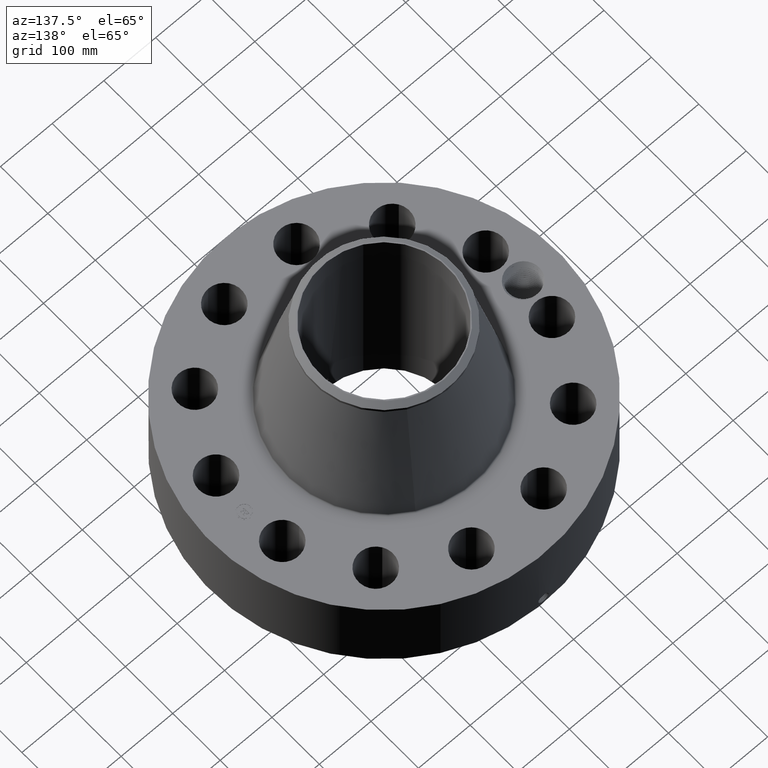
[diagram: clean part render]
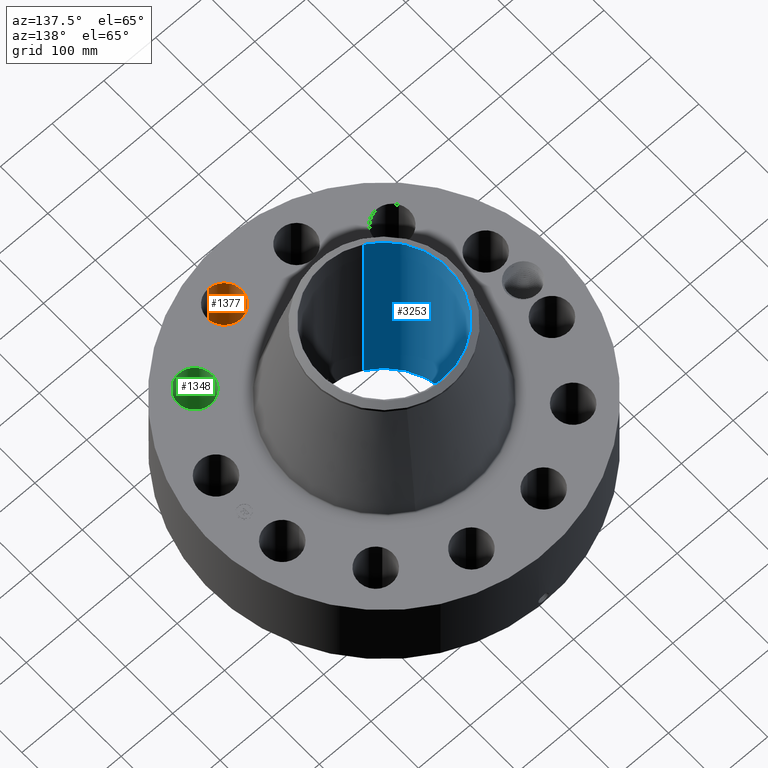
[diagram: same view with three faces highlighted in distinct colors, each labeled with its STEP entity id]
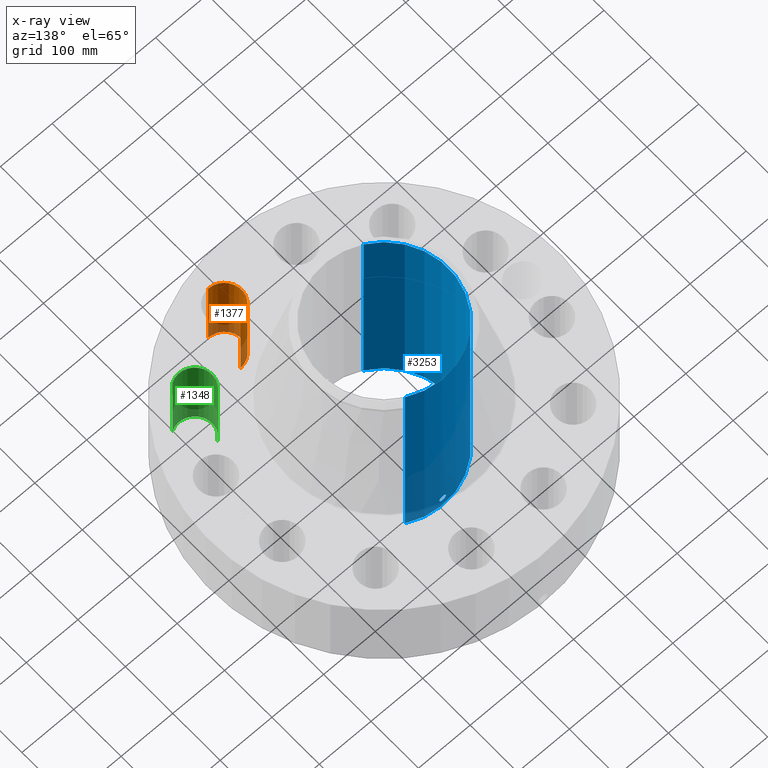
[diagram: x-ray of the same camera — body ghosted, the three highlighted faces saturated]
A machine part, auxiliary view with three faces highlighted in distinct colors.
The next image is the same camera in x-ray (body ghosted, the three faces saturated) — at least one of them is partly hidden behind the body in this view.
Their STEP definitions:

[orange] entity #1377 — the highlighted cylindrical surface (edge-blend (fillet) strip) has radius 33.274 mm, axis along (0, -0, -1).
#302=AXIS2_PLACEMENT_3D('Circle Axis2P3D',#300,#301,$) ;
#697=AXIS2_PLACEMENT_3D('Circle Axis2P3D',#695,#696,$) ;
#1352=AXIS2_PLACEMENT_3D('Cylinder Axis2P3D',#1349,#1350,#1351) ;
#295=CARTESIAN_POINT('Vertex',(2.71904082749,-8.95332665838,0.250000000001)) ;
#297=CARTESIAN_POINT('Vertex',(2.78086388096,-11.5725971503,0.250000000001)) ;
#300=CARTESIAN_POINT('Axis2P3D Location',(2.74995235423,-10.2629619044,0.250000000001)) ;
#695=CARTESIAN_POINT('Axis2P3D Location',(2.74995235423,-10.2629619044,6.75000000003)) ;
#699=CARTESIAN_POINT('Vertex',(2.78086388096,-11.5725971503,6.75000000003)) ;
#701=CARTESIAN_POINT('Vertex',(2.71904082749,-8.95332665838,6.75000000003)) ;
#1349=CARTESIAN_POINT('Axis2P3D Location',(2.74995235423,-10.2629619044,6.74606299215)) ;
#1354=CARTESIAN_POINT('Line Origine',(2.71904082749,-8.95332665838,3.50000000001)) ;
#1359=CARTESIAN_POINT('Line Origine',(2.78086388096,-11.5725971503,3.50000000001)) ;
#301=DIRECTION('Axis2P3D Direction',(0.,0.,-0.0393700787402)) ;
#696=DIRECTION('Axis2P3D Direction',(0.,0.,-0.0393700787402)) ;
#1350=DIRECTION('Axis2P3D Direction',(0.,-0.,-0.0393700787402)) ;
#1351=DIRECTION('Axis2P3D XDirection',(0.000928999420902,-0.039359116607,0.)) ;
#1355=DIRECTION('Vector Direction',(0.,0.,-0.0393700787402)) ;
#1360=DIRECTION('Vector Direction',(0.,0.,-0.0393700787402)) ;
#1356=VECTOR('Line Direction',#1355,0.0393700787402) ;
#1361=VECTOR('Line Direction',#1360,0.0393700787402) ;
#1372=ORIENTED_EDGE('',*,*,#1363,.F.) ;
#1373=ORIENTED_EDGE('',*,*,#304,.T.) ;
#1374=ORIENTED_EDGE('',*,*,#1358,.T.) ;
#1375=ORIENTED_EDGE('',*,*,#703,.F.) ;
#1377=ADVANCED_FACE('PartBody',(#1376),#1353,.F.) ;
#303=CIRCLE('generated circle',#302,1.31000000001) ;
#698=CIRCLE('generated circle',#697,1.31000000001) ;
#1353=CYLINDRICAL_SURFACE('generated cylinder',#1352,1.31000000001) ;
#304=EDGE_CURVE('',#298,#296,#303,.T.) ;
#703=EDGE_CURVE('',#700,#702,#698,.T.) ;
#1358=EDGE_CURVE('',#296,#702,#1357,.F.) ;
#1363=EDGE_CURVE('',#298,#700,#1362,.F.) ;
#1371=EDGE_LOOP('',(#1372,#1373,#1374,#1375)) ;
#1376=FACE_OUTER_BOUND('',#1371,.T.) ;
#1357=LINE('Line',#1354,#1356) ;
#1362=LINE('Line',#1359,#1361) ;
#296=VERTEX_POINT('',#295) ;
#298=VERTEX_POINT('',#297) ;
#700=VERTEX_POINT('',#699) ;
#702=VERTEX_POINT('',#701) ;

[blue] entity #3253 — the highlighted cylindrical surface (partial cylindrical patch) has radius 123.825 mm, axis along (0, 0, -1).
#2366=AXIS2_PLACEMENT_3D('Circle Axis2P3D',#2364,#2365,$) ;
#3130=AXIS2_PLACEMENT_3D('Cylinder Axis2P3D',#3127,#3128,#3129) ;
#3202=AXIS2_PLACEMENT_3D('Circle Axis2P3D',#3200,#3201,$) ;
#2359=CARTESIAN_POINT('Vertex',(2.3371995007,4.27821498923,-1.56655091349E-014)) ;
#2361=CARTESIAN_POINT('Vertex',(-2.3371995007,-4.27821498923,-1.56655091349E-014)) ;
#2364=CARTESIAN_POINT('Axis2P3D Location',(0.,0.,0.)) ;
#3127=CARTESIAN_POINT('Axis2P3D Location',(0.,0.,8.37500000003)) ;
#3136=CARTESIAN_POINT('Vertex',(2.3371995007,4.27821498923,16.7500000001)) ;
#3138=CARTESIAN_POINT('Vertex',(-2.3371995007,-4.27821498923,16.7500000001)) ;
#3141=CARTESIAN_POINT('Line Origine',(2.3371995007,4.27821498923,8.37500000003)) ;
#3146=CARTESIAN_POINT('Line Origine',(-2.3371995007,-4.27821498923,8.37500000003)) ;
#3200=CARTESIAN_POINT('Axis2P3D Location',(0.,0.,16.7500000001)) ;
#3212=CARTESIAN_POINT('Control Point',(0.219395640473,4.87006063136,1.05985638466)) ;
#3213=CARTESIAN_POINT('Control Point',(0.206921744645,4.87062257885,1.08268969781)) ;
#3214=CARTESIAN_POINT('Control Point',(0.19147839485,4.87127828143,1.103898462)) ;
#3215=CARTESIAN_POINT('Control Point',(0.173345566519,4.87197707092,1.12296984665)) ;
#3216=CARTESIAN_POINT('Control Point',(0.112139222241,4.87399811607,1.17244722734)) ;
#3217=CARTESIAN_POINT('Control Point',(0.0349864891641,4.87531118116,1.1959724494)) ;
#3218=CARTESIAN_POINT('Control Point',(-0.0195554396041,4.87540934404,1.19761228032)) ;
#3219=CARTESIAN_POINT('Control Point',(-0.124139352667,4.87396423206,1.17247244667)) ;
#3220=CARTESIAN_POINT('Control Point',(-0.203183379739,4.87097270785,1.09956667949)) ;
#3221=CARTESIAN_POINT('Control Point',(-0.23216181559,4.86949971364,1.05335497984)) ;
#3222=CARTESIAN_POINT('Control Point',(-0.255832360066,4.868286833,0.975197541676)) ;
#3223=CARTESIAN_POINT('Control Point',(-0.248297207582,4.86867260604,0.895806024556)) ;
#3224=CARTESIAN_POINT('Control Point',(-0.242063087909,4.86899647574,0.869220415261)) ;
#3225=CARTESIAN_POINT('Control Point',(-0.232324342998,4.86947819488,0.843809446582)) ;
#3226=CARTESIAN_POINT('Control Point',(-0.219395640473,4.87006063136,0.820143615352)) ;
#3227=CARTESIAN_POINT('Vertex',(0.219395640473,4.87006063136,1.05985638466)) ;
#3229=CARTESIAN_POINT('Vertex',(-0.219395640473,4.87006063136,0.820143615352)) ;
#3233=CARTESIAN_POINT('Control Point',(-0.219395640473,4.87006063136,0.820143615352)) ;
#3234=CARTESIAN_POINT('Control Point',(-0.206921744645,4.87062257885,0.797310302196)) ;
#3235=CARTESIAN_POINT('Control Point',(-0.19147839485,4.87127828143,0.776101538011)) ;
#3236=CARTESIAN_POINT('Control Point',(-0.173345566519,4.87197707092,0.757030153359)) ;
#3237=CARTESIAN_POINT('Control Point',(-0.112139222245,4.87399811607,0.70755277267)) ;
#3238=CARTESIAN_POINT('Control Point',(-0.0349864891732,4.87531118116,0.684027550612)) ;
#3239=CARTESIAN_POINT('Control Point',(0.0195554396117,4.87540934404,0.68238771969)) ;
#3240=CARTESIAN_POINT('Control Point',(0.124139352612,4.87396423206,0.70752755333)) ;
#3241=CARTESIAN_POINT('Control Point',(0.203183379652,4.87097270786,0.780433320435)) ;
#3242=CARTESIAN_POINT('Control Point',(0.232161815625,4.86949971364,0.826645020285)) ;
#3243=CARTESIAN_POINT('Control Point',(0.255832360066,4.868286833,0.904802458408)) ;
#3244=CARTESIAN_POINT('Control Point',(0.248297207579,4.86867260604,0.984193975491)) ;
#3245=CARTESIAN_POINT('Control Point',(0.242063087924,4.86899647574,1.01077958471)) ;
#3246=CARTESIAN_POINT('Control Point',(0.232324343008,4.86947819488,1.03619055341)) ;
#3247=CARTESIAN_POINT('Control Point',(0.219395640473,4.87006063136,1.05985638466)) ;
#2365=DIRECTION('Axis2P3D Direction',(0.,0.,-0.0393700787402)) ;
#3128=DIRECTION('Axis2P3D Direction',(0.,0.,-0.0393700787402)) ;
#3129=DIRECTION('Axis2P3D XDirection',(-0.0188750212049,-0.0345504945626,0.)) ;
#3142=DIRECTION('Vector Direction',(0.,0.,-0.0393700787402)) ;
#3147=DIRECTION('Vector Direction',(0.,0.,-0.0393700787402)) ;
#3201=DIRECTION('Axis2P3D Direction',(0.,0.,-0.0393700787402)) ;
#3143=VECTOR('Line Direction',#3142,0.0393700787402) ;
#3148=VECTOR('Line Direction',#3147,0.0393700787402) ;
#3206=ORIENTED_EDGE('',*,*,#3204,.F.) ;
#3207=ORIENTED_EDGE('',*,*,#3150,.T.) ;
#3208=ORIENTED_EDGE('',*,*,#2368,.T.) ;
#3209=ORIENTED_EDGE('',*,*,#3145,.F.) ;
#3250=ORIENTED_EDGE('',*,*,#3231,.F.) ;
#3251=ORIENTED_EDGE('',*,*,#3248,.F.) ;
#3252=FACE_BOUND('',#3249,.T.) ;
#3253=ADVANCED_FACE('PartBody',(#3210,#3252),#3131,.F.) ;
#3211=B_SPLINE_CURVE_WITH_KNOTS('',5,(#3212,#3213,#3214,#3215,#3216,#3217,#3218,#3219,#3220,#3221,#3222,#3223,#3224,#3225,#3226),.UNSPECIFIED.,.F.,.U.,(6,3,3,3,6),(0.,4.67413161607,14.0220348649,23.3720177427,28.2165713654),.UNSPECIFIED.) ;
#3232=B_SPLINE_CURVE_WITH_KNOTS('',5,(#3233,#3234,#3235,#3236,#3237,#3238,#3239,#3240,#3241,#3242,#3243,#3244,#3245,#3246,#3247),.UNSPECIFIED.,.F.,.U.,(6,3,3,3,6),(0.,4.67413161602,14.0220348641,23.3720177316,28.2165713579),.UNSPECIFIED.) ;
#2367=CIRCLE('generated circle',#2366,4.87500000002) ;
#3203=CIRCLE('generated circle',#3202,4.87500000002) ;
#3131=CYLINDRICAL_SURFACE('generated cylinder',#3130,4.87500000002) ;
#2368=EDGE_CURVE('',#2362,#2360,#2367,.T.) ;
#3145=EDGE_CURVE('',#3137,#2360,#3144,.T.) ;
#3150=EDGE_CURVE('',#3139,#2362,#3149,.T.) ;
#3204=EDGE_CURVE('',#3139,#3137,#3203,.T.) ;
#3231=EDGE_CURVE('',#3228,#3230,#3211,.T.) ;
#3248=EDGE_CURVE('',#3230,#3228,#3232,.T.) ;
#3205=EDGE_LOOP('',(#3206,#3207,#3208,#3209)) ;
#3249=EDGE_LOOP('',(#3250,#3251)) ;
#3210=FACE_OUTER_BOUND('',#3205,.T.) ;
#3144=LINE('Line',#3141,#3143) ;
#3149=LINE('Line',#3146,#3148) ;
#2360=VERTEX_POINT('',#2359) ;
#2362=VERTEX_POINT('',#2361) ;
#3137=VERTEX_POINT('',#3136) ;
#3139=VERTEX_POINT('',#3138) ;
#3228=VERTEX_POINT('',#3227) ;
#3230=VERTEX_POINT('',#3229) ;

[green] entity #1348 — the highlighted cylindrical surface (edge-blend (fillet) strip) has radius 33.274 mm, axis along (0, -0, -1).
#284=AXIS2_PLACEMENT_3D('Circle Axis2P3D',#282,#283,$) ;
#679=AXIS2_PLACEMENT_3D('Circle Axis2P3D',#677,#678,$) ;
#1323=AXIS2_PLACEMENT_3D('Cylinder Axis2P3D',#1320,#1321,#1322) ;
#277=CARTESIAN_POINT('Vertex',(6.83142175973,-6.39428792079,0.250000000001)) ;
#279=CARTESIAN_POINT('Vertex',(8.19459734055,-8.63173117949,0.250000000001)) ;
#282=CARTESIAN_POINT('Axis2P3D Location',(7.51300955014,-7.51300955014,0.250000000001)) ;
#677=CARTESIAN_POINT('Axis2P3D Location',(7.51300955014,-7.51300955014,6.75000000003)) ;
#681=CARTESIAN_POINT('Vertex',(8.19459734055,-8.63173117949,6.75000000003)) ;
#683=CARTESIAN_POINT('Vertex',(6.83142175973,-6.39428792079,6.75000000003)) ;
#1320=CARTESIAN_POINT('Axis2P3D Location',(7.51300955014,-7.51300955014,6.74606299215)) ;
#1325=CARTESIAN_POINT('Line Origine',(6.83142175973,-6.39428792079,3.50000000001)) ;
#1330=CARTESIAN_POINT('Line Origine',(8.19459734055,-8.63173117949,3.50000000001)) ;
#283=DIRECTION('Axis2P3D Direction',(0.,0.,-0.0393700787402)) ;
#678=DIRECTION('Axis2P3D Direction',(0.,0.,-0.0393700787402)) ;
#1321=DIRECTION('Axis2P3D Direction',(0.,-0.,-0.0393700787402)) ;
#1322=DIRECTION('Axis2P3D XDirection',(0.0204840954021,-0.0336214951417,0.)) ;
#1326=DIRECTION('Vector Direction',(0.,0.,-0.0393700787402)) ;
#1331=DIRECTION('Vector Direction',(0.,0.,-0.0393700787402)) ;
#1327=VECTOR('Line Direction',#1326,0.0393700787402) ;
#1332=VECTOR('Line Direction',#1331,0.0393700787402) ;
#1343=ORIENTED_EDGE('',*,*,#1334,.F.) ;
#1344=ORIENTED_EDGE('',*,*,#286,.T.) ;
#1345=ORIENTED_EDGE('',*,*,#1329,.T.) ;
#1346=ORIENTED_EDGE('',*,*,#685,.F.) ;
#1348=ADVANCED_FACE('PartBody',(#1347),#1324,.F.) ;
#285=CIRCLE('generated circle',#284,1.31000000001) ;
#680=CIRCLE('generated circle',#679,1.31000000001) ;
#1324=CYLINDRICAL_SURFACE('generated cylinder',#1323,1.31000000001) ;
#286=EDGE_CURVE('',#280,#278,#285,.T.) ;
#685=EDGE_CURVE('',#682,#684,#680,.T.) ;
#1329=EDGE_CURVE('',#278,#684,#1328,.F.) ;
#1334=EDGE_CURVE('',#280,#682,#1333,.F.) ;
#1342=EDGE_LOOP('',(#1343,#1344,#1345,#1346)) ;
#1347=FACE_OUTER_BOUND('',#1342,.T.) ;
#1328=LINE('Line',#1325,#1327) ;
#1333=LINE('Line',#1330,#1332) ;
#278=VERTEX_POINT('',#277) ;
#280=VERTEX_POINT('',#279) ;
#682=VERTEX_POINT('',#681) ;
#684=VERTEX_POINT('',#683) ;